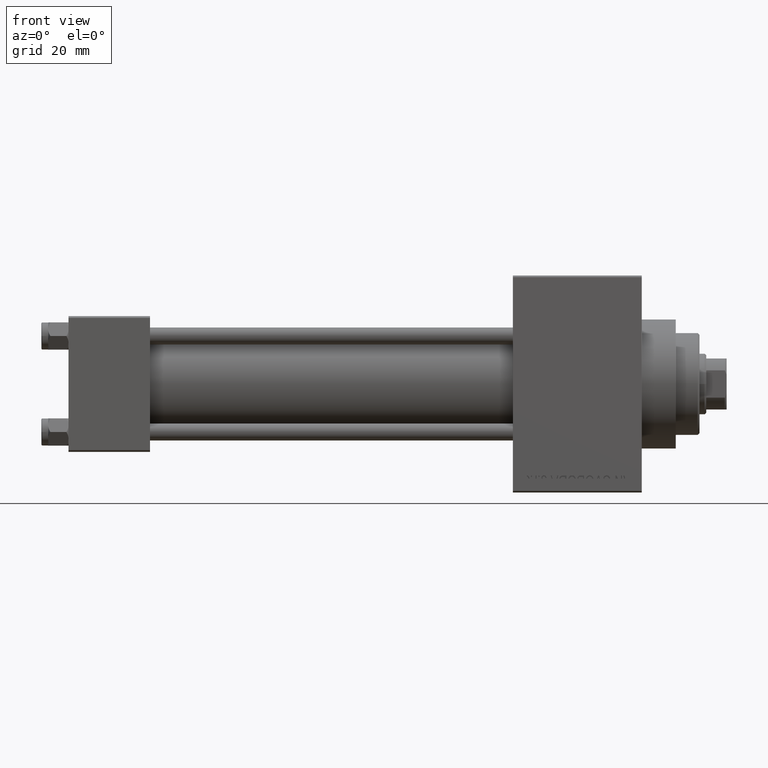
[diagram: clean part render]
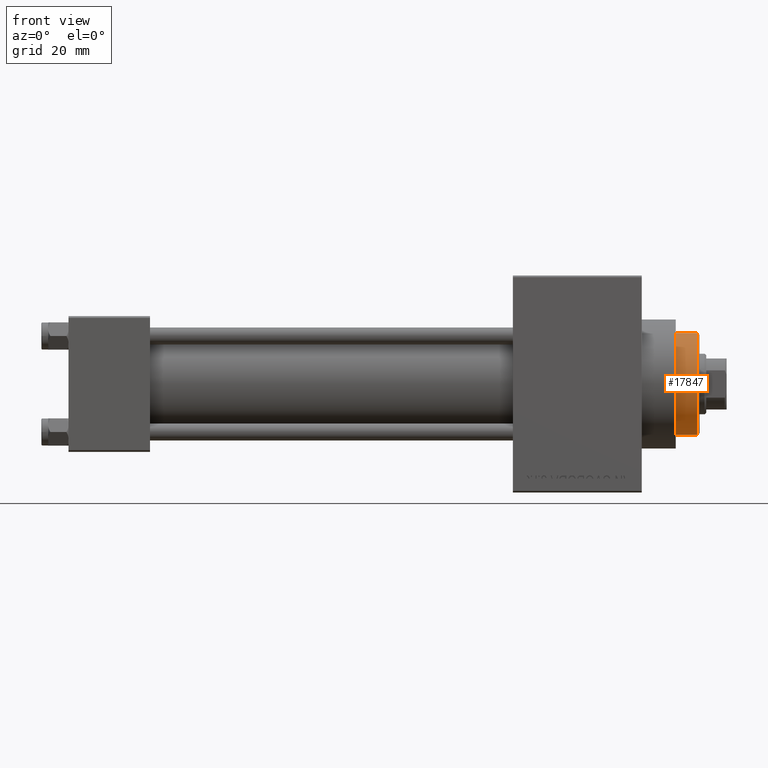
[diagram: same view with one face highlighted and labeled with its STEP entity id]
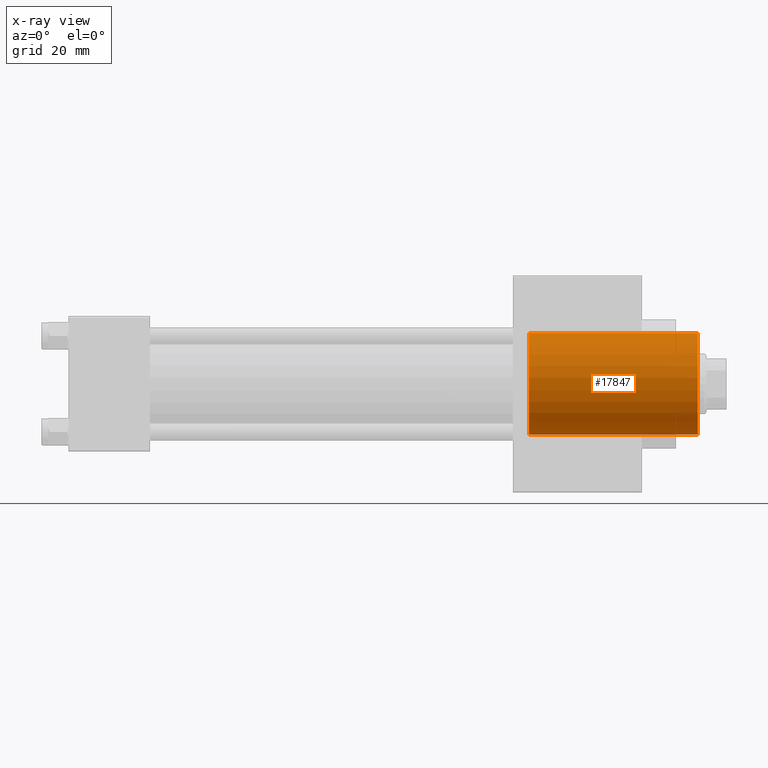
[diagram: x-ray of the same camera — body ghosted, the highlighted face saturated]
A machine part, front view. The second image highlights one B-rep face of the part: STEP entity #17847.
The next image is the same camera in x-ray: the body ghosted, the highlighted face saturated — about 0% of this face is hidden behind the body in this view.
In plain terms, the highlighted cylindrical surface (partial cylindrical patch) has radius 15 mm, axis along (-1, 0, 0).
Its self-contained STEP definition (entity closure, byte-faithful):
#461 = LINE ( 'NONE', #15721, #13011 ) ;
#490 = DIRECTION ( 'NONE',  ( 0.000000000000000000, 0.000000000000000000, -1.000000000000000000 ) ) ;
#2693 = CARTESIAN_POINT ( 'NONE',  ( -15.00000000000000000, 0.000000000000000000, 43.25999999999999801 ) ) ;
#3113 = CARTESIAN_POINT ( 'NONE',  ( 0.000000000000000000, 0.000000000000000000, 0.000000000000000000 ) ) ;
#4257 = EDGE_CURVE ( 'NONE', #29649, #22004, #18315, .T. ) ;
#5288 = EDGE_CURVE ( 'NONE', #22004, #37069, #461, .T. ) ;
#5832 = ORIENTED_EDGE ( 'NONE', *, *, #35124, .T. ) ;
#6449 = AXIS2_PLACEMENT_3D ( 'NONE', #8515, #26817, #26352 ) ;
#7896 = CARTESIAN_POINT ( 'NONE',  ( 0.000000000000000000, 0.000000000000000000, 49.75999999999998380 ) ) ;
#8035 = CYLINDRICAL_SURFACE ( 'NONE', #6449, 15.00000000000000000 ) ;
#8515 = CARTESIAN_POINT ( 'NONE',  ( 0.000000000000000000, 0.000000000000000000, 43.25999999999999801 ) ) ;
#12318 = FACE_OUTER_BOUND ( 'NONE', #18160, .T. ) ;
#13011 = VECTOR ( 'NONE', #15009, 1000.000000000000000 ) ;
#14052 = EDGE_CURVE ( 'NONE', #29649, #17746, #45331, .T. ) ;
#14746 = VECTOR ( 'NONE', #39122, 1000.000000000000000 ) ;
#15009 = DIRECTION ( 'NONE',  ( -0.000000000000000000, -0.000000000000000000, -1.000000000000000000 ) ) ;
#15721 = CARTESIAN_POINT ( 'NONE',  ( 15.00000000000000000, 1.836970198721029589E-15, 43.25999999999999801 ) ) ;
#17652 = DIRECTION ( 'NONE',  ( 0.000000000000000000, 0.000000000000000000, 1.000000000000000000 ) ) ;
#17746 = VERTEX_POINT ( 'NONE', #40161 ) ;
#17847 = ADVANCED_FACE ( 'NONE', ( #12318 ), #8035, .T. ) ;
#18160 = EDGE_LOOP ( 'NONE', ( #45825, #22713, #5832, #44531 ) ) ;
#18315 = CIRCLE ( 'NONE', #27387, 15.00000000000000000 ) ;
#18835 = CARTESIAN_POINT ( 'NONE',  ( -15.00000000000000000, 0.000000000000000000, 49.75999999999998380 ) ) ;
#18837 = DIRECTION ( 'NONE',  ( 1.000000000000000000, 0.000000000000000000, 0.000000000000000000 ) ) ;
#22004 = VERTEX_POINT ( 'NONE', #45544 ) ;
#22713 = ORIENTED_EDGE ( 'NONE', *, *, #5288, .T. ) ;
#23442 = CIRCLE ( 'NONE', #32586, 15.00000000000000000 ) ;
#26352 = DIRECTION ( 'NONE',  ( -1.000000000000000000, 0.000000000000000000, 0.000000000000000000 ) ) ;
#26817 = DIRECTION ( 'NONE',  ( -0.000000000000000000, -0.000000000000000000, -1.000000000000000000 ) ) ;
#27387 = AXIS2_PLACEMENT_3D ( 'NONE', #7896, #490, #18837 ) ;
#29649 = VERTEX_POINT ( 'NONE', #18835 ) ;
#32167 = DIRECTION ( 'NONE',  ( 1.000000000000000000, 0.000000000000000000, 0.000000000000000000 ) ) ;
#32404 = CARTESIAN_POINT ( 'NONE',  ( 15.00000000000000000, 1.836970198721029589E-15, 0.000000000000000000 ) ) ;
#32586 = AXIS2_PLACEMENT_3D ( 'NONE', #3113, #17652, #32167 ) ;
#35124 = EDGE_CURVE ( 'NONE', #37069, #17746, #23442, .T. ) ;
#37069 = VERTEX_POINT ( 'NONE', #32404 ) ;
#39122 = DIRECTION ( 'NONE',  ( -0.000000000000000000, -0.000000000000000000, -1.000000000000000000 ) ) ;
#40161 = CARTESIAN_POINT ( 'NONE',  ( -15.00000000000000000, 0.000000000000000000, 0.000000000000000000 ) ) ;
#44531 = ORIENTED_EDGE ( 'NONE', *, *, #14052, .F. ) ;
#45331 = LINE ( 'NONE', #2693, #14746 ) ;
#45544 = CARTESIAN_POINT ( 'NONE',  ( 15.00000000000000000, 1.836970198721029589E-15, 49.75999999999998380 ) ) ;
#45825 = ORIENTED_EDGE ( 'NONE', *, *, #4257, .T. ) ;